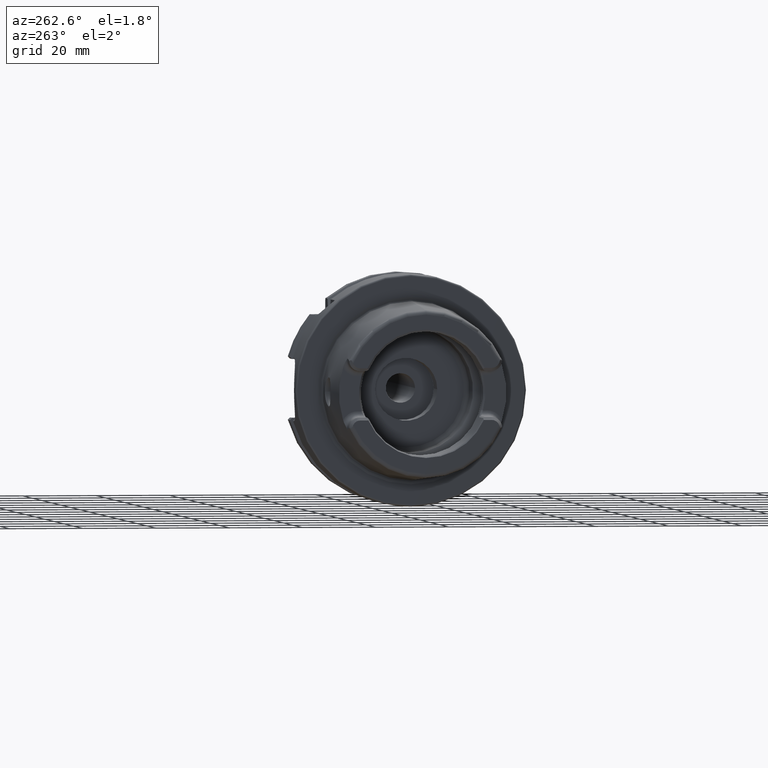
[diagram: clean part render]
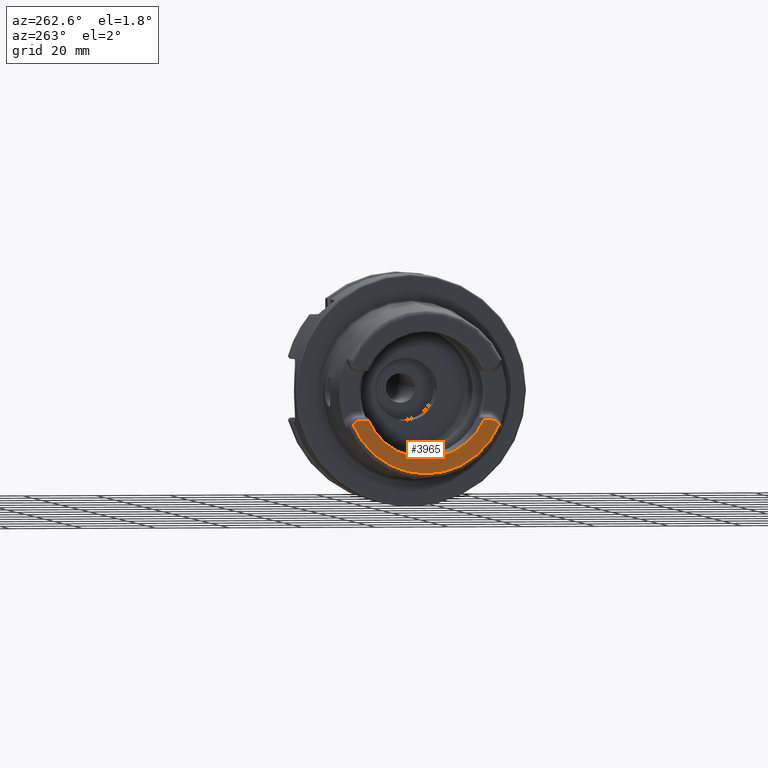
[diagram: same view with one face highlighted and labeled with its STEP entity id]
A machine part, auxiliary view. The second image highlights one B-rep face of the part: STEP entity #3965.
In plain terms, the highlighted planar face has unit normal (1, 0, 0).
Its self-contained STEP definition (entity closure, byte-faithful):
#88=CARTESIAN_POINT('',(-3.2E1,0.E0,0.E0));
#89=DIRECTION('',(-1.E0,0.E0,0.E0));
#90=DIRECTION('',(0.E0,9.224287428258E-1,-3.861673399044E-1));
#91=AXIS2_PLACEMENT_3D('',#88,#89,#90);
#1062=DIRECTION('',(0.E0,1.E0,0.E0));
#1063=VECTOR('',#1062,2.213010809741E0);
#1064=CARTESIAN_POINT('',(-3.2E1,1.577698919026E1,-7.07E0));
#1065=LINE('',#1064,#1063);
#1066=DIRECTION('',(0.E0,-1.E0,0.E0));
#1067=VECTOR('',#1066,2.213010809741E0);
#1068=CARTESIAN_POINT('',(-3.2E1,-1.577698919026E1,-7.07E0));
#1069=LINE('',#1068,#1067);
#1070=CARTESIAN_POINT('',(-3.2E1,-1.799E1,-9.15E0));
#1071=DIRECTION('',(1.E0,0.E0,0.E0));
#1072=DIRECTION('',(0.E0,0.E0,1.E0));
#1073=AXIS2_PLACEMENT_3D('',#1070,#1071,#1072);
#1075=CARTESIAN_POINT('',(-3.2E1,1.799E1,-9.15E0));
#1076=DIRECTION('',(-1.E0,0.E0,0.E0));
#1077=DIRECTION('',(0.E0,0.E0,1.E0));
#1078=AXIS2_PLACEMENT_3D('',#1075,#1076,#1077);
#1446=CARTESIAN_POINT('',(-3.2E1,0.E0,-3.446132268436E-13));
#1447=DIRECTION('',(1.E0,0.E0,0.E0));
#1448=DIRECTION('',(0.E0,-9.125620712653E-1,-4.089382179351E-1));
#1449=AXIS2_PLACEMENT_3D('',#1446,#1447,#1448);
#2732=CARTESIAN_POINT('',(-3.2E1,-1.799E1,-7.07E0));
#2734=VERTEX_POINT('',#2732);
#2735=CARTESIAN_POINT('',(-3.2E1,-1.577698919026E1,-7.07E0));
#2736=VERTEX_POINT('',#2735);
#2737=CARTESIAN_POINT('',(-3.2E1,-1.990238974402E1,-8.331974653830E0));
#2738=VERTEX_POINT('',#2737);
#2750=CARTESIAN_POINT('',(-3.2E1,1.799E1,-7.07E0));
#2752=VERTEX_POINT('',#2750);
#2763=CARTESIAN_POINT('',(-3.2E1,1.577698919026E1,-7.07E0));
#2764=VERTEX_POINT('',#2763);
#2765=CARTESIAN_POINT('',(-3.2E1,1.990238974402E1,-8.331974653830E0));
#2766=VERTEX_POINT('',#2765);
#3951=CARTESIAN_POINT('',(-3.2E1,0.E0,0.E0));
#3952=DIRECTION('',(1.E0,0.E0,0.E0));
#3953=DIRECTION('',(0.E0,0.E0,1.E0));
#3954=AXIS2_PLACEMENT_3D('',#3951,#3952,#3953);
#3955=PLANE('',#3954);
#3956=ORIENTED_EDGE('',*,*,#3037,.F.);
#3958=ORIENTED_EDGE('',*,*,#3957,.F.);
#3959=ORIENTED_EDGE('',*,*,#3920,.T.);
#3960=ORIENTED_EDGE('',*,*,#3909,.T.);
#3961=ORIENTED_EDGE('',*,*,#2996,.F.);
#3962=ORIENTED_EDGE('',*,*,#3017,.F.);
#3963=EDGE_LOOP('',(#3956,#3958,#3959,#3960,#3961,#3962));
#3964=FACE_OUTER_BOUND('',#3963,.F.);
#3965=ADVANCED_FACE('',(#3964),#3955,.F.);
#92=CIRCLE('',#91,2.157607283902E1);
#1074=CIRCLE('',#1073,2.08E0);
#1079=CIRCLE('',#1078,2.08E0);
#1450=CIRCLE('',#1449,1.728867513459E1);
#2996=EDGE_CURVE('',#2766,#2738,#92,.T.);
#3017=EDGE_CURVE('',#2752,#2766,#1079,.T.);
#3037=EDGE_CURVE('',#2764,#2752,#1065,.T.);
#3909=EDGE_CURVE('',#2734,#2738,#1074,.T.);
#3920=EDGE_CURVE('',#2736,#2734,#1069,.T.);
#3957=EDGE_CURVE('',#2736,#2764,#1450,.T.);